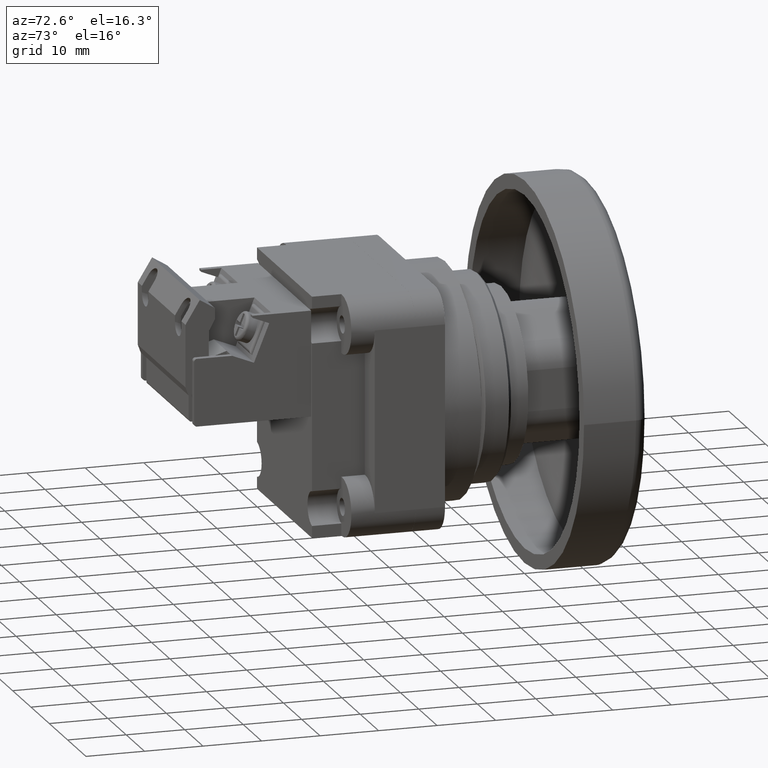
[diagram: clean part render]
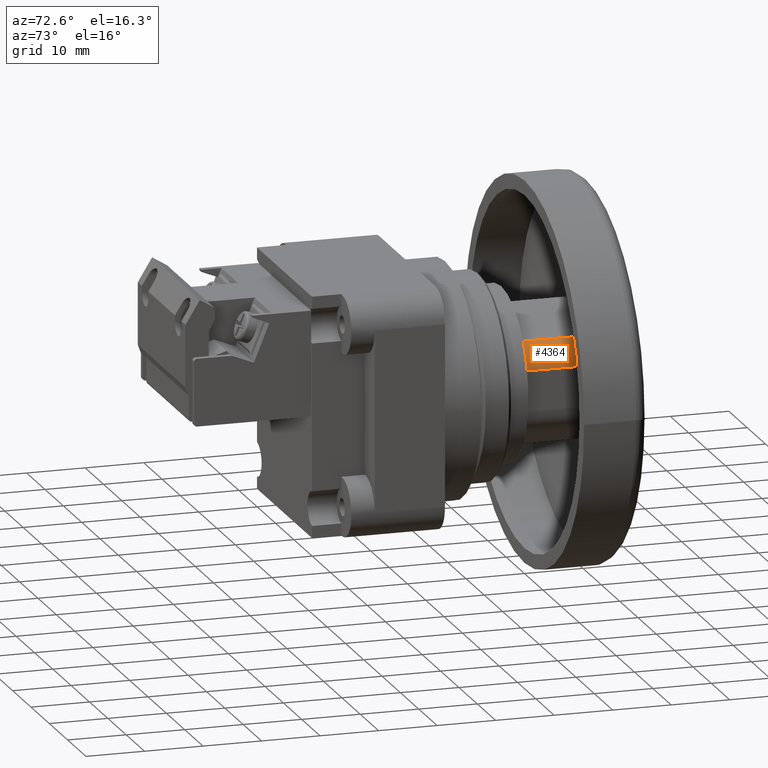
[diagram: same view with one face highlighted and labeled with its STEP entity id]
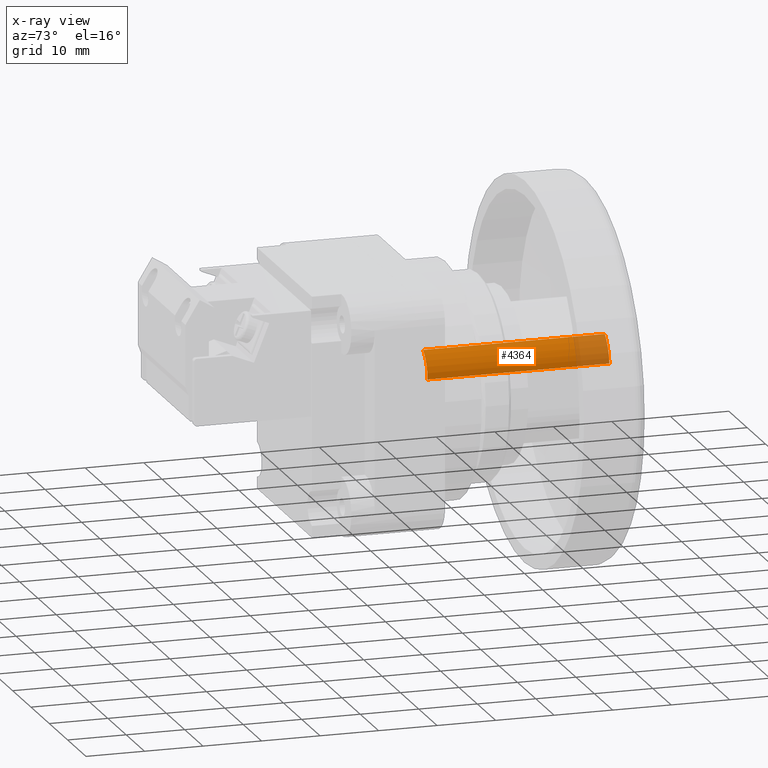
[diagram: x-ray of the same camera — body ghosted, the highlighted face saturated]
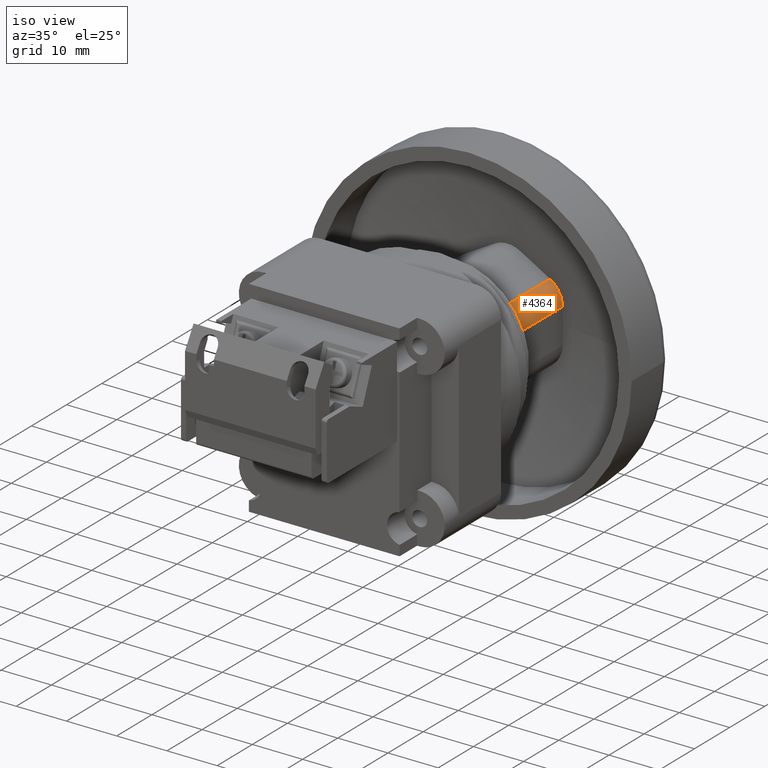
[diagram: same view with one face highlighted and labeled with its STEP entity id]
A machine part, auxiliary view. The second image highlights one B-rep face of the part: STEP entity #4364.
The next image is the same camera in x-ray: the body ghosted, the highlighted face saturated — about 18% of this face is hidden behind the body in this view.
A second angle (iso view) of the same face is appended — the face is thin or edge-on in the first view.
In plain terms, the highlighted cylindrical surface (edge-blend (fillet) strip) has radius 5 mm, axis along (0, -1, 0).
Its self-contained STEP definition (entity closure, byte-faithful):
#7 = CARTESIAN_POINT ( 'NONE',  ( 10.99999999999999600, 31.05643327303095400, 3.464101615137756600 ) ) ;
#374 = DIRECTION ( 'NONE',  ( -8.673617379884037400E-016, 0.0000000000000000000, 1.000000000000000000 ) ) ;
#423 = CARTESIAN_POINT ( 'NONE',  ( 8.881726233126709500, 31.04623345893523700, 7.573838890607500900 ) ) ;
#561 = EDGE_CURVE ( 'NONE', #2481, #2674, #2919, .T. ) ;
#747 = ORIENTED_EDGE ( 'NONE', *, *, #7685, .F. ) ;
#1005 = CARTESIAN_POINT ( 'NONE',  ( 8.499999999999992900, 31.05643327303098300, 7.794228634059953400 ) ) ;
#1053 = CARTESIAN_POINT ( 'NONE',  ( 9.835528007161727300, 31.02870558605376100, 6.679152647885451300 ) ) ;
#1245 = CARTESIAN_POINT ( 'NONE',  ( 5.999999999999994700, 34.00100000000000500, 3.464101615137758800 ) ) ;
#1276 = DIRECTION ( 'NONE',  ( 0.0000000000000000000, -1.000000000000000000, 0.0000000000000000000 ) ) ;
#1475 = ORIENTED_EDGE ( 'NONE', *, *, #561, .F. ) ;
#1606 = ORIENTED_EDGE ( 'NONE', *, *, #5059, .F. ) ;
#1648 = CARTESIAN_POINT ( 'NONE',  ( 10.22230407927864700, 31.02542461362715200, 6.150994235342548900 ) ) ;
#1820 = CYLINDRICAL_SURFACE ( 'NONE', #6073, 5.000000000000000000 ) ;
#1949 = CIRCLE ( 'NONE', #2295, 4.999999999999999100 ) ;
#2210 = VERTEX_POINT ( 'NONE', #5466 ) ;
#2235 = CARTESIAN_POINT ( 'NONE',  ( 10.53606586978461800, 31.02608739628737000, 5.578907201426023500 ) ) ;
#2295 = AXIS2_PLACEMENT_3D ( 'NONE', #7504, #3925, #374 ) ;
#2481 = VERTEX_POINT ( 'NONE', #1005 ) ;
#2520 = DIRECTION ( 'NONE',  ( 0.0000000000000000000, -1.000000000000000000, 0.0000000000000000000 ) ) ;
#2674 = VERTEX_POINT ( 'NONE', #7 ) ;
#2809 = LINE ( 'NONE', #3082, #7004 ) ;
#2824 = CARTESIAN_POINT ( 'NONE',  ( 10.99999999999999600, 0.0000000000000000000, 3.464101615137758400 ) ) ;
#2834 = CARTESIAN_POINT ( 'NONE',  ( 10.77453433970546500, 31.03074951181055100, 4.964435307946583700 ) ) ;
#2919 = B_SPLINE_CURVE_WITH_KNOTS ( 'NONE', 3,
 ( #4004, #423, #3409, #4582, #1053, #5185, #1648, #5784, #2235, #6402, #2834, #7009, #3433, #7609 ),
 .UNSPECIFIED., .F., .F.,
 ( 4, 2, 2, 2, 2, 2, 4 ),
 ( 0.0000000000000000000, 0.001303928123172212000, 0.001955892184758316600, 0.002607856246344420500, 0.003259820307930524900, 0.003911784369516629700, 0.005215712492688836700 ),
 .UNSPECIFIED. ) ;
#3082 = CARTESIAN_POINT ( 'NONE',  ( 10.99999999999999600, 34.00100000000000500, 3.464101615137757500 ) ) ;
#3335 = VECTOR ( 'NONE', #5687, 1000.000000000000000 ) ;
#3409 = CARTESIAN_POINT ( 'NONE',  ( 9.226403424204168100, 31.03855335301122400, 7.308689942616202200 ) ) ;
#3433 = CARTESIAN_POINT ( 'NONE',  ( 10.99999999999999600, 31.04623347554380400, 3.904880384312720700 ) ) ;
#3925 = DIRECTION ( 'NONE',  ( -0.0000000000000000000, -1.000000000000000000, -0.0000000000000000000 ) ) ;
#4004 = CARTESIAN_POINT ( 'NONE',  ( 8.499999999999992900, 31.05643327303098300, 7.794228634059953400 ) ) ;
#4218 = DIRECTION ( 'NONE',  ( 0.0000000000000000000, 0.0000000000000000000, -1.000000000000000000 ) ) ;
#4364 = ADVANCED_FACE ( 'NONE', ( #5330 ), #1820, .T. ) ;
#4582 = CARTESIAN_POINT ( 'NONE',  ( 9.689446139708680400, 31.03070558306698200, 6.845761236989672800 ) ) ;
#4893 = EDGE_LOOP ( 'NONE', ( #1475, #7526, #1606, #747 ) ) ;
#4909 = LINE ( 'NONE', #6881, #3335 ) ;
#5047 = EDGE_CURVE ( 'NONE', #2210, #2481, #4909, .T. ) ;
#5059 = EDGE_CURVE ( 'NONE', #6481, #2210, #1949, .T. ) ;
#5185 = CARTESIAN_POINT ( 'NONE',  ( 10.10159166153775200, 31.02607467322786100, 6.331988307268043000 ) ) ;
#5330 = FACE_OUTER_BOUND ( 'NONE', #4893, .T. ) ;
#5466 = CARTESIAN_POINT ( 'NONE',  ( 8.499999999999992900, 0.0000000000000000000, 7.794228634059952500 ) ) ;
#5687 = DIRECTION ( 'NONE',  ( -0.0000000000000000000, 1.000000000000000000, -0.0000000000000000000 ) ) ;
#5784 = CARTESIAN_POINT ( 'NONE',  ( 10.43954041974788400, 31.02543101636169700, 5.774453222973435600 ) ) ;
#6073 = AXIS2_PLACEMENT_3D ( 'NONE', #1245, #1276, #4218 ) ;
#6402 = CARTESIAN_POINT ( 'NONE',  ( 10.70411852835958300, 31.02875036244913800, 5.172775110561908600 ) ) ;
#6481 = VERTEX_POINT ( 'NONE', #2824 ) ;
#6881 = CARTESIAN_POINT ( 'NONE',  ( 8.499999999999992900, 34.00100000000000500, 7.794228634059952500 ) ) ;
#7004 = VECTOR ( 'NONE', #2520, 1000.000000000000000 ) ;
#7009 = CARTESIAN_POINT ( 'NONE',  ( 10.94271658097738100, 31.03857787554438000, 4.334888732260894000 ) ) ;
#7504 = CARTESIAN_POINT ( 'NONE',  ( 5.999999999999994700, 0.0000000000000000000, 3.464101615137758800 ) ) ;
#7526 = ORIENTED_EDGE ( 'NONE', *, *, #5047, .F. ) ;
#7609 = CARTESIAN_POINT ( 'NONE',  ( 10.99999999999999600, 31.05643327303095400, 3.464101615137756600 ) ) ;
#7685 = EDGE_CURVE ( 'NONE', #2674, #6481, #2809, .T. ) ;